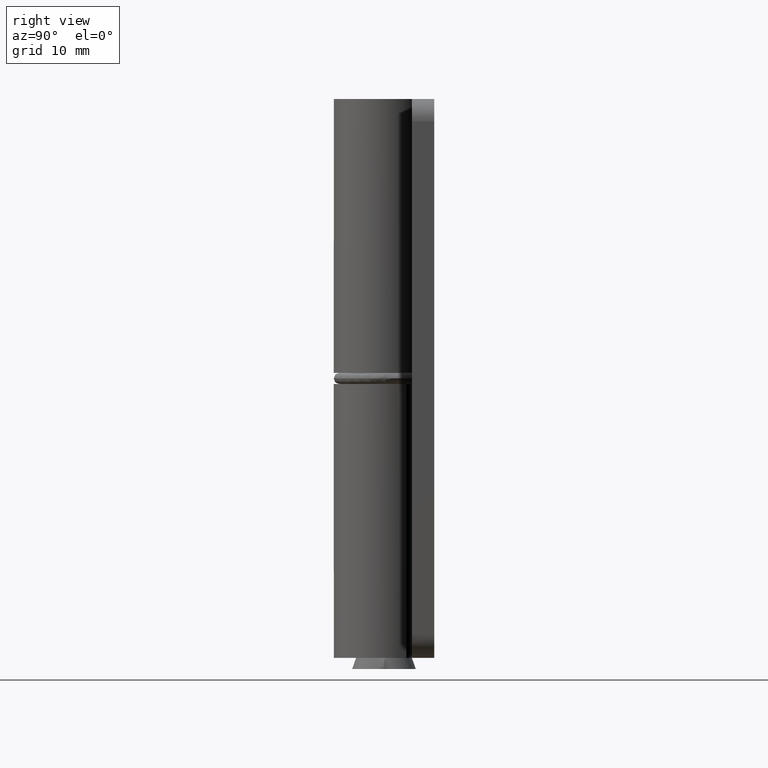
[diagram: clean part render]
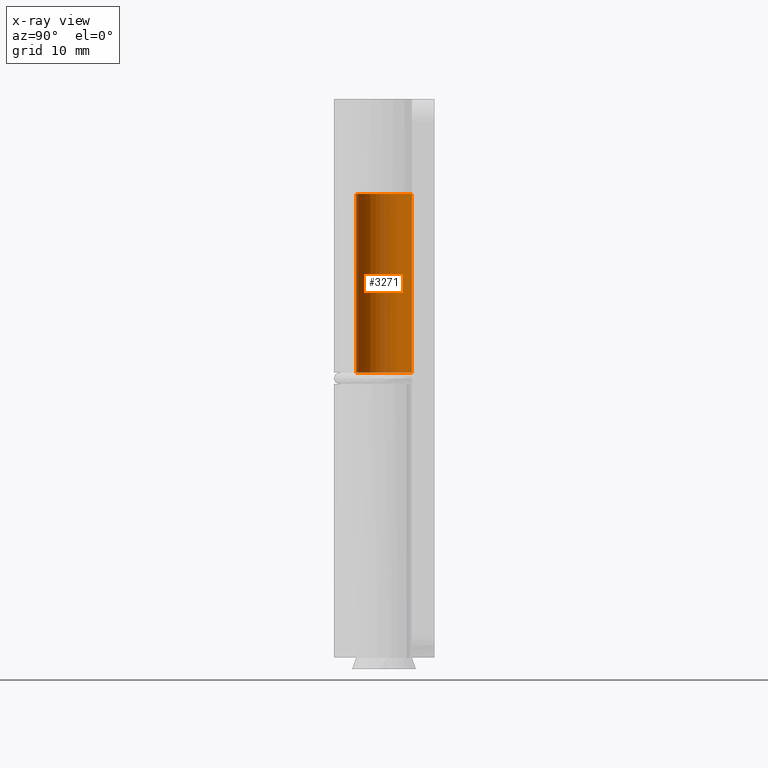
[diagram: x-ray — body ghosted, one internal face saturated and labeled with its STEP entity id]
A machine part, right view, then the same camera in x-ray: the body is ghosted and one INTERNAL B-rep face — a face not visible from any outside direction — is saturated and labeled: STEP entity #3271.
In plain terms, the highlighted face is a freeform B-spline surface patch.
Its self-contained STEP definition (entity closure, byte-faithful):
#2686=CARTESIAN_POINT('',(0.152621348947437,-2.495336996056527,41.499999999958803));
#2687=VERTEX_POINT('',#2686);
#2708=CARTESIAN_POINT('',(-0.152621348947430,2.495336996056540,41.499999999958810));
#2709=VERTEX_POINT('',#2708);
#2753=CARTESIAN_POINT('',(-2.500000000000107,7.105427E-015,41.499999999999552));
#2754=VERTEX_POINT('',#2753);
#2755=CARTESIAN_POINT('',(-2.500000000000107,7.105427E-015,41.499999999999552));
#2756=CARTESIAN_POINT('',(-2.499999999945482,2.351765167064651,41.499999999979174));
#2757=CARTESIAN_POINT('',(-0.152621348947430,2.495336996056540,41.499999999958810));
#2765=(BOUNDED_CURVE()B_SPLINE_CURVE(2,(#2755,#2756,#2757),.UNSPECIFIED.,.F.,.U.)B_SPLINE_CURVE_WITH_KNOTS((3,3),(0.0,0.239332962226788),.UNSPECIFIED.)CURVE()GEOMETRIC_REPRESENTATION_ITEM()RATIONAL_B_SPLINE_CURVE((1.0,0.719603993300950,0.976072041640668))REPRESENTATION_ITEM(''));
#2766=EDGE_CURVE('',#2754,#2709,#2765,.T.);
#2768=CARTESIAN_POINT('',(0.152621348947437,-2.495336996056528,41.499999999958803));
#2769=CARTESIAN_POINT('',(0.076381908248875,-2.500000000015069,41.499999999959392));
#2770=CARTESIAN_POINT('',(-1.060057E-010,-2.500000000014837,41.499999999960018));
#2771=CARTESIAN_POINT('',(-2.500000000051492,-2.500000000007245,41.499999999980389));
#2772=CARTESIAN_POINT('',(-2.500000000000107,7.105427E-015,41.499999999999552));
#2780=(BOUNDED_CURVE()B_SPLINE_CURVE(2,(#2768,#2769,#2770,#2771,#2772),.UNSPECIFIED.,.F.,.U.)B_SPLINE_CURVE_WITH_KNOTS((3,2,3),(0.739332962226788,0.750000000000000,1.0),.UNSPECIFIED.)CURVE()GEOMETRIC_REPRESENTATION_ITEM()RATIONAL_B_SPLINE_CURVE((0.976072041640668,0.987502787885597,1.0,0.707106781186548,1.0))REPRESENTATION_ITEM(''));
#2781=EDGE_CURVE('',#2687,#2754,#2780,.T.);
#3168=CARTESIAN_POINT('',(-0.152621348967179,2.495336996046831,25.500000000000000));
#3169=VERTEX_POINT('',#3168);
#3170=CARTESIAN_POINT('',(-0.152621348947430,2.495336996056540,41.499999999958810));
#3171=CARTESIAN_POINT('',(-0.152621348967179,2.495336996046831,25.500000000000000));
#3172=QUASI_UNIFORM_CURVE('',1,(#3170,#3171),.UNSPECIFIED.,.F.,.U.);
#3173=EDGE_CURVE('',#2709,#3169,#3172,.T.);
#3177=CARTESIAN_POINT('',(0.152621348967186,-2.495336996046817,25.500000000000000));
#3178=VERTEX_POINT('',#3177);
#3179=CARTESIAN_POINT('',(0.152621348947437,-2.495336996056527,41.499999999958803));
#3180=CARTESIAN_POINT('',(0.152621348967186,-2.495336996046817,25.500000000000000));
#3181=QUASI_UNIFORM_CURVE('',1,(#3179,#3180),.UNSPECIFIED.,.F.,.U.);
#3182=EDGE_CURVE('',#2687,#3178,#3181,.T.);
#3217=CARTESIAN_POINT('',(0.152621348837153,-2.495336996054769,41.899999999999551));
#3218=CARTESIAN_POINT('',(-2.342715647217623,-2.647958344891919,41.899999999999558));
#3219=CARTESIAN_POINT('',(-2.495336996054773,-0.152621348837142,41.899999999999551));
#3220=CARTESIAN_POINT('',(-2.647958344891922,2.342715647217635,41.899999999999558));
#3221=CARTESIAN_POINT('',(-0.152621348837146,2.495336996054784,41.899999999999551));
#3222=CARTESIAN_POINT('',(0.152621348837153,-2.495336996054769,25.090000000000011));
#3223=CARTESIAN_POINT('',(-2.342715647217623,-2.647958344891919,25.090000000000000));
#3224=CARTESIAN_POINT('',(-2.495336996054773,-0.152621348837142,25.090000000000011));
#3225=CARTESIAN_POINT('',(-2.647958344891922,2.342715647217635,25.090000000000000));
#3226=CARTESIAN_POINT('',(-0.152621348837146,2.495336996054784,25.090000000000011));
#3234=(BOUNDED_SURFACE()B_SPLINE_SURFACE(2,1,((#3217,#3222),(#3218,#3223),(#3219,#3224),(#3220,#3225),(#3221,#3226)),.UNSPECIFIED.,.F.,.F.,.U.)B_SPLINE_SURFACE_WITH_KNOTS((3,2,3),(2,2),(0.0,4.142135623731132,8.284271247462264),(0.0,16.809999999999551),.UNSPECIFIED.)GEOMETRIC_REPRESENTATION_ITEM()RATIONAL_B_SPLINE_SURFACE(((1.0,1.0),(0.707106781186548,0.707106781186548),(1.0,1.0),(0.707106781186548,0.707106781186548),(1.0,1.0)))REPRESENTATION_ITEM('')SURFACE());
#3235=ORIENTED_EDGE('',*,*,#3173,.T.);
#3236=CARTESIAN_POINT('',(-2.500000000000107,7.105427E-015,25.500000000000000));
#3237=VERTEX_POINT('',#3236);
#3238=CARTESIAN_POINT('',(-2.500000000000107,7.105427E-015,25.500000000000000));
#3239=CARTESIAN_POINT('',(-2.500000000000107,2.351765167141566,25.500000000000000));
#3240=CARTESIAN_POINT('',(-0.152621348967179,2.495336996046831,25.500000000000004));
#3248=(BOUNDED_CURVE()B_SPLINE_CURVE(2,(#3238,#3239,#3240),.UNSPECIFIED.,.F.,.U.)B_SPLINE_CURVE_WITH_KNOTS((3,3),(0.0,0.239332962232977),.UNSPECIFIED.)CURVE()GEOMETRIC_REPRESENTATION_ITEM()RATIONAL_B_SPLINE_CURVE((1.0,0.719603993293700,0.976072041653931))REPRESENTATION_ITEM(''));
#3249=EDGE_CURVE('',#3237,#3169,#3248,.T.);
#3250=ORIENTED_EDGE('',*,*,#3249,.F.);
#3251=CARTESIAN_POINT('',(0.152621348967187,-2.495336996046817,25.499999999999996));
#3252=CARTESIAN_POINT('',(0.076381908311679,-2.500000000000104,25.499999999999993));
#3253=CARTESIAN_POINT('',(3.552714E-015,-2.500000000000104,25.500000000000000));
#3254=CARTESIAN_POINT('',(-2.500000000000106,-2.500000000000103,25.499999999999993));
#3255=CARTESIAN_POINT('',(-2.500000000000107,7.105427E-015,25.500000000000000));
#3263=(BOUNDED_CURVE()B_SPLINE_CURVE(2,(#3251,#3252,#3253,#3254,#3255),.UNSPECIFIED.,.F.,.U.)B_SPLINE_CURVE_WITH_KNOTS((3,2,3),(0.739332962232977,0.750000000000000,1.0),.UNSPECIFIED.)CURVE()GEOMETRIC_REPRESENTATION_ITEM()RATIONAL_B_SPLINE_CURVE((0.976072041653931,0.987502787892848,1.0,0.707106781186548,1.0))REPRESENTATION_ITEM(''));
#3264=EDGE_CURVE('',#3178,#3237,#3263,.T.);
#3265=ORIENTED_EDGE('',*,*,#3264,.F.);
#3266=ORIENTED_EDGE('',*,*,#3182,.F.);
#3267=ORIENTED_EDGE('',*,*,#2781,.T.);
#3268=ORIENTED_EDGE('',*,*,#2766,.T.);
#3269=EDGE_LOOP('',(#3235,#3250,#3265,#3266,#3267,#3268));
#3270=FACE_OUTER_BOUND('',#3269,.T.);
#3271=ADVANCED_FACE('',(#3270),#3234,.T.);